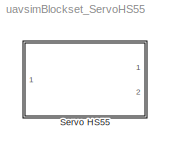
MODEL uavsimBlockset_ServoHS55
KIND library
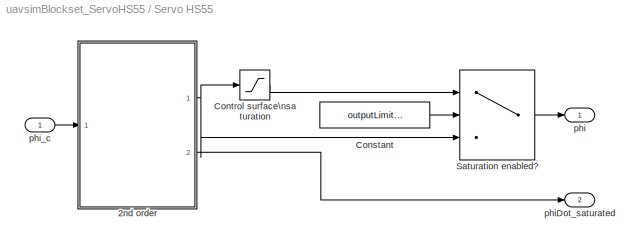
BLOCK [SubSystem] Servo HS55
  Ports = [1, 2]
  RequestExecContextInheritance = off
  SID = 4444
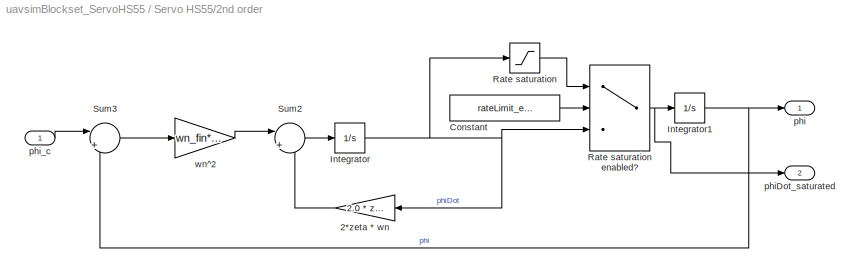
BLOCK [SubSystem] Servo HS55/2nd order
  Ports = [1, 2]
  RequestExecContextInheritance = off
  SID = 4446
BLOCK [Gain] Servo HS55/2nd order/2*zeta * wn
  Gain = 2.0 * z_fin* wn_fin
  SID = 4448
BLOCK [Constant] Servo HS55/2nd order/Constant
  SID = 4449
  Value = rateLimit_enabled
BLOCK [Integrator] Servo HS55/2nd order/Integrator
  InitialCondition = fin_act_vel
  Ports = [1, 1]
  SID = 4450
BLOCK [Integrator] Servo HS55/2nd order/Integrator1
  InitialCondition = fin_act_0
  Ports = [1, 1]
  SID = 4451
BLOCK [Saturate] Servo HS55/2nd order/Rate saturation
  InputPortMap = u0
  LowerLimit = -rateLimit
  Ports = [1, 1]
  SID = 4464
  UpperLimit = rateLimit
BLOCK [Switch] Servo HS55/2nd order/Rate saturation enabled?
  Criteria = u2 > Threshold
  InputSameDT = off
  SID = 4453
  SaturateOnIntegerOverflow = off
BLOCK [Sum] Servo HS55/2nd order/Sum2
  IconShape = round
  Inputs = |+-
  Ports = [2, 1]
  SID = 4454
BLOCK [Sum] Servo HS55/2nd order/Sum3
  IconShape = round
  Inputs = |+-
  Ports = [2, 1]
  SID = 4455
BLOCK [Outport] Servo HS55/2nd order/phi
  IconDisplay = Port number
  PortDimensions = 1
  SID = 4457
BLOCK [Outport] Servo HS55/2nd order/phiDot_saturated
  IconDisplay = Port number
  Port = 2
  PortDimensions = 1
  SID = 4458
BLOCK [Inport] Servo HS55/2nd order/phi_c
  IconDisplay = Port number
  SID = 4447
BLOCK [Gain] Servo HS55/2nd order/wn^2
  Gain = wn_fin* wn_fin
  SID = 4456
BLOCK [Constant] Servo HS55/Constant
  SID = 4459
  Value = outputLimit_enabled
BLOCK [Saturate] Servo HS55/Control surface\nsaturation
  InputPortMap = u0
  LowerLimit = deflectionLimits_rad(1)
  Ports = [1, 1]
  SID = 4460
  UpperLimit = deflectionLimits_rad(2)
BLOCK [Switch] Servo HS55/Saturation enabled?
  Criteria = u2 > Threshold
  InputSameDT = off
  SID = 4461
  SaturateOnIntegerOverflow = off
BLOCK [Outport] Servo HS55/phi
  IconDisplay = Port number
  PortDimensions = 1
  SID = 4462
BLOCK [Outport] Servo HS55/phiDot_saturated
  IconDisplay = Port number
  Port = 2
  PortDimensions = 1
  SID = 4463
BLOCK [Inport] Servo HS55/phi_c
  IconDisplay = Port number
  SID = 4445
LINE Servo HS55/2nd order/2*zeta * wn:1 -> Servo HS55/2nd order/Sum2:2
LINE Servo HS55/2nd order/Constant:1 -> Servo HS55/2nd order/Rate saturation enabled?:2
NET Servo HS55/2nd order/Integrator1:1 -> Servo HS55/2nd order/Sum3:2, Servo HS55/2nd order/phi:1
NET Servo HS55/2nd order/Integrator:1 -> Servo HS55/2nd order/2*zeta * wn:1, Servo HS55/2nd order/Rate saturation enabled?:3, Servo HS55/2nd order/Rate saturation:1
NET Servo HS55/2nd order/Rate saturation enabled?:1 -> Servo HS55/2nd order/Integrator1:1, Servo HS55/2nd order/phiDot_saturated:1
LINE Servo HS55/2nd order/Rate saturation:1 -> Servo HS55/2nd order/Rate saturation enabled?:1
LINE Servo HS55/2nd order/Sum2:1 -> Servo HS55/2nd order/Integrator:1
LINE Servo HS55/2nd order/Sum3:1 -> Servo HS55/2nd order/wn^2:1
LINE Servo HS55/2nd order/phi_c:1 -> Servo HS55/2nd order/Sum3:1
LINE Servo HS55/2nd order/wn^2:1 -> Servo HS55/2nd order/Sum2:1
NET Servo HS55/2nd order:1 -> Servo HS55/Control surface\nsaturation:1, Servo HS55/Saturation enabled?:3
LINE Servo HS55/2nd order:2 -> Servo HS55/phiDot_saturated:1
LINE Servo HS55/Constant:1 -> Servo HS55/Saturation enabled?:2
LINE Servo HS55/Control surface\nsaturation:1 -> Servo HS55/Saturation enabled?:1
LINE Servo HS55/Saturation enabled?:1 -> Servo HS55/phi:1
LINE Servo HS55/phi_c:1 -> Servo HS55/2nd order:1
note: NET lines group one-source signal fan-out (src -> all destinations, sorted); 1:1 wires keep LINE
